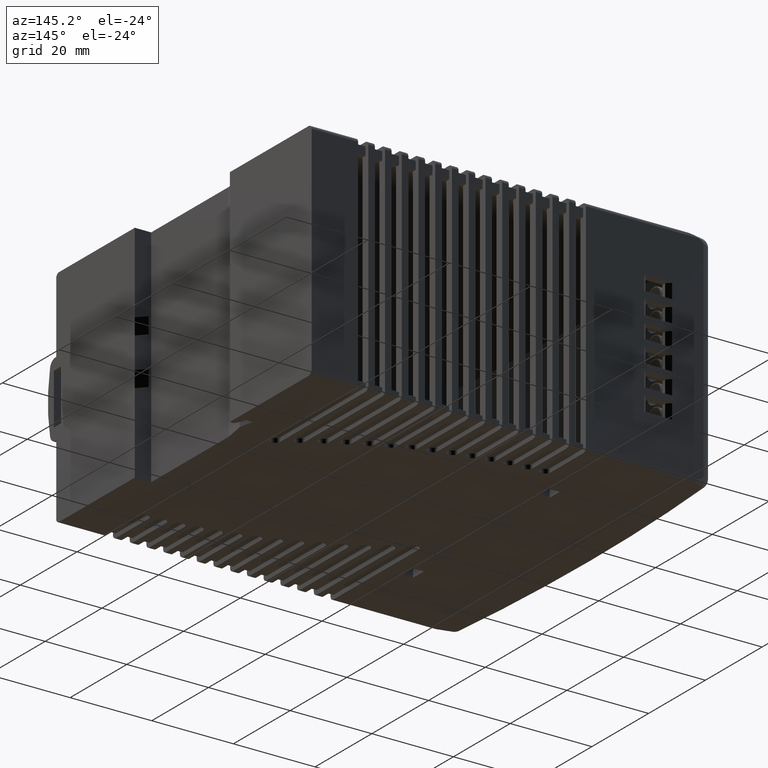
[diagram: clean part render]
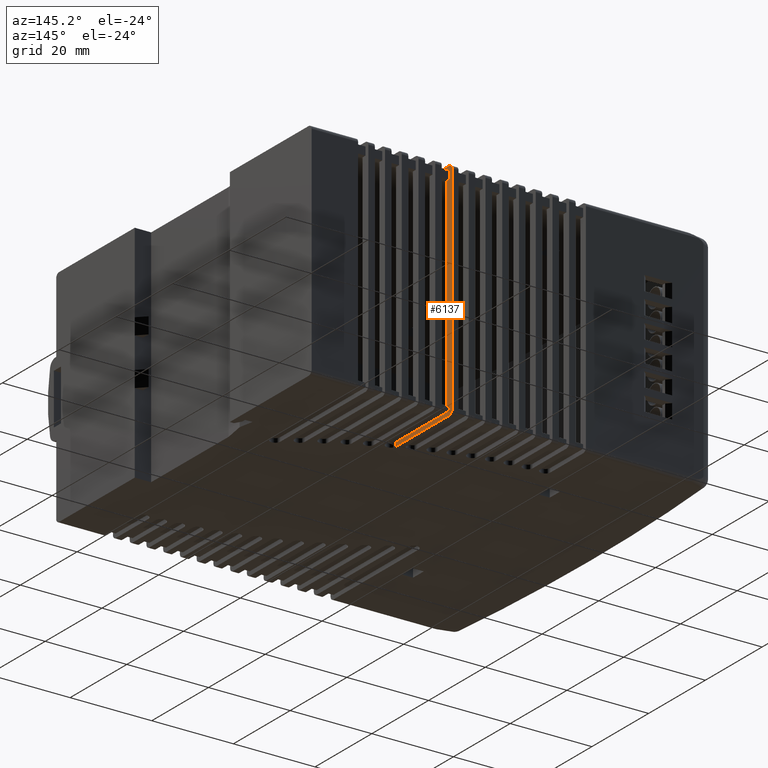
[diagram: same view with one face highlighted and labeled with its STEP entity id]
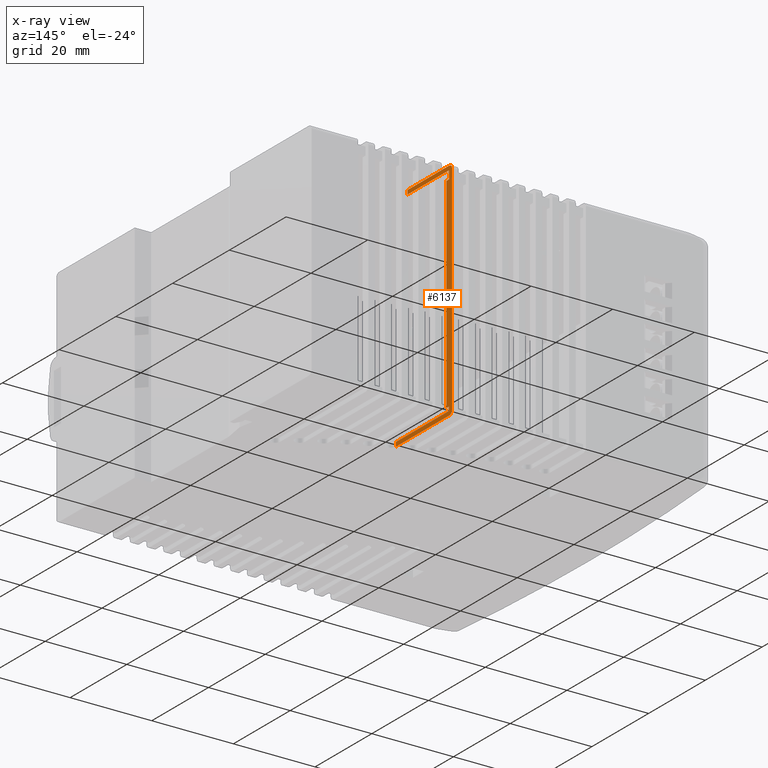
[diagram: x-ray of the same camera — body ghosted, the highlighted face saturated]
A machine part, auxiliary view. The second image highlights one B-rep face of the part: STEP entity #6137.
The next image is the same camera in x-ray: the body ghosted, the highlighted face saturated — about 0% of this face is hidden behind the body in this view.
In plain terms, the highlighted planar face has unit normal (-1, 0, 0).
Its self-contained STEP definition (entity closure, byte-faithful):
#1684=CARTESIAN_POINT('',(14.183936774582566,74.020104148547091,0.0));
#1685=VERTEX_POINT('',#1684);
#1692=CARTESIAN_POINT('',(14.183936774582563,55.294316255991617,0.0));
#1693=VERTEX_POINT('',#1692);
#1694=CARTESIAN_POINT('',(14.183936774582566,74.020104148547091,0.0));
#1695=DIRECTION('',(0.0,-1.0,0.0));
#1696=VECTOR('',#1695,18.725787892555473);
#1697=LINE('',#1694,#1696);
#1698=EDGE_CURVE('',#1685,#1693,#1697,.T.);
#2668=CARTESIAN_POINT('',(14.183936774582563,55.294316255991617,1.0));
#2669=VERTEX_POINT('',#2668);
#2684=CARTESIAN_POINT('',(14.183936774582563,55.294316255991617,0.0));
#2685=DIRECTION('',(0.0,0.0,1.0));
#2686=VECTOR('',#2685,1.0);
#2687=LINE('',#2684,#2686);
#2688=EDGE_CURVE('',#1693,#2669,#2687,.T.);
#2707=CARTESIAN_POINT('',(14.183936774582568,74.020104148547105,1.0));
#2708=VERTEX_POINT('',#2707);
#2709=CARTESIAN_POINT('',(14.183936774582563,55.294316255991617,1.0));
#2710=DIRECTION('',(0.0,1.0,0.0));
#2711=VECTOR('',#2710,18.725787892555488);
#2712=LINE('',#2709,#2711);
#2713=EDGE_CURVE('',#2669,#2708,#2712,.T.);
#4541=CARTESIAN_POINT('',(14.183936774582575,59.380196030672572,55.0));
#4542=VERTEX_POINT('',#4541);
#4550=CARTESIAN_POINT('',(14.183936774582575,74.020104148547077,55.0));
#4551=VERTEX_POINT('',#4550);
#4552=CARTESIAN_POINT('',(14.183936774582575,59.380196030672572,55.0));
#4553=DIRECTION('',(0.0,1.0,0.0));
#4554=VECTOR('',#4553,14.639908117874505);
#4555=LINE('',#4552,#4554);
#4556=EDGE_CURVE('',#4542,#4551,#4555,.T.);
#6004=CARTESIAN_POINT('',(14.183936774582566,75.020104148547077,54.0));
#6005=VERTEX_POINT('',#6004);
#6006=CARTESIAN_POINT('',(14.183936774582568,74.020104148547077,54.0));
#6007=DIRECTION('',(-1.0,0.0,0.0));
#6008=DIRECTION('',(0.0,0.707106781186541,0.707106781186554));
#6009=AXIS2_PLACEMENT_3D('',#6006,#6007,#6008);
#6010=CIRCLE('',#6009,1.0);
#6011=EDGE_CURVE('',#4551,#6005,#6010,.T.);
#6038=CARTESIAN_POINT('',(14.183936774582566,75.020104148547077,1.0));
#6039=VERTEX_POINT('',#6038);
#6040=CARTESIAN_POINT('',(14.183936774582566,75.020104148547077,54.0));
#6041=DIRECTION('',(0.0,0.0,-1.0));
#6042=VECTOR('',#6041,53.0);
#6043=LINE('',#6040,#6042);
#6044=EDGE_CURVE('',#6005,#6039,#6043,.T.);
#6063=CARTESIAN_POINT('',(14.183936774582566,75.020104148547077,2.0));
#6064=DIRECTION('',(-1.0,0.0,0.0));
#6065=DIRECTION('',(0.0,0.0,1.0));
#6066=AXIS2_PLACEMENT_3D('',#6063,#6064,#6065);
#6067=PLANE('',#6066);
#6068=ORIENTED_EDGE('',*,*,#6011,.F.);
#6069=ORIENTED_EDGE('',*,*,#4556,.F.);
#6070=CARTESIAN_POINT('',(14.183936774582575,59.380196030672572,54.0));
#6071=VERTEX_POINT('',#6070);
#6072=CARTESIAN_POINT('',(14.183936774582575,59.380196030672572,55.0));
#6073=DIRECTION('',(0.0,0.0,-1.0));
#6074=VECTOR('',#6073,1.0);
#6075=LINE('',#6072,#6074);
#6076=EDGE_CURVE('',#4542,#6071,#6075,.T.);
#6077=ORIENTED_EDGE('',*,*,#6076,.T.);
#6078=CARTESIAN_POINT('',(14.183936774582575,74.020104148547091,54.0));
#6079=VERTEX_POINT('',#6078);
#6080=CARTESIAN_POINT('',(14.183936774582575,74.020104148547091,54.0));
#6081=DIRECTION('',(0.0,-1.0,0.0));
#6082=VECTOR('',#6081,14.639908117874519);
#6083=LINE('',#6080,#6082);
#6084=EDGE_CURVE('',#6079,#6071,#6083,.T.);
#6085=ORIENTED_EDGE('',*,*,#6084,.F.);
#6086=CARTESIAN_POINT('',(14.183936774582575,74.020104148547091,52.0));
#6087=VERTEX_POINT('',#6086);
#6088=CARTESIAN_POINT('',(14.183936774582575,74.020104148547091,52.0));
#6089=DIRECTION('',(0.0,0.0,1.0));
#6090=VECTOR('',#6089,2.0);
#6091=LINE('',#6088,#6090);
#6092=EDGE_CURVE('',#6087,#6079,#6091,.T.);
#6093=ORIENTED_EDGE('',*,*,#6092,.F.);
#6094=CARTESIAN_POINT('',(14.183936774582575,73.020104148547077,52.0));
#6095=VERTEX_POINT('',#6094);
#6096=CARTESIAN_POINT('',(14.183936774582575,74.020104148547091,52.0));
#6097=DIRECTION('',(0.0,-1.0,0.0));
#6098=VECTOR('',#6097,1.000000000000014);
#6099=LINE('',#6096,#6098);
#6100=EDGE_CURVE('',#6087,#6095,#6099,.T.);
#6101=ORIENTED_EDGE('',*,*,#6100,.T.);
#6102=CARTESIAN_POINT('',(14.183936774582566,73.020104148547077,2.0));
#6103=VERTEX_POINT('',#6102);
#6104=CARTESIAN_POINT('',(14.183936774582566,73.020104148547077,2.0));
#6105=DIRECTION('',(0.0,0.0,1.0));
#6106=VECTOR('',#6105,50.0);
#6107=LINE('',#6104,#6106);
#6108=EDGE_CURVE('',#6103,#6095,#6107,.T.);
#6109=ORIENTED_EDGE('',*,*,#6108,.F.);
#6110=CARTESIAN_POINT('',(14.183936774582566,74.020104148547091,2.0));
#6111=VERTEX_POINT('',#6110);
#6112=CARTESIAN_POINT('',(14.183936774582566,74.020104148547091,2.0));
#6113=DIRECTION('',(0.0,-1.0,0.0));
#6114=VECTOR('',#6113,1.000000000000014);
#6115=LINE('',#6112,#6114);
#6116=EDGE_CURVE('',#6111,#6103,#6115,.T.);
#6117=ORIENTED_EDGE('',*,*,#6116,.F.);
#6118=CARTESIAN_POINT('',(14.183936774582568,74.020104148547105,1.0));
#6119=DIRECTION('',(0.0,0.0,1.0));
#6120=VECTOR('',#6119,1.0);
#6121=LINE('',#6118,#6120);
#6122=EDGE_CURVE('',#2708,#6111,#6121,.T.);
#6123=ORIENTED_EDGE('',*,*,#6122,.F.);
#6124=ORIENTED_EDGE('',*,*,#2713,.F.);
#6125=ORIENTED_EDGE('',*,*,#2688,.F.);
#6126=ORIENTED_EDGE('',*,*,#1698,.F.);
#6127=CARTESIAN_POINT('',(14.183936774582566,74.020104148547077,1.0));
#6128=DIRECTION('',(-1.000000000000000,0.0,0.0));
#6129=DIRECTION('',(0.0,0.707106781186540,-0.707106781186555));
#6130=AXIS2_PLACEMENT_3D('',#6127,#6128,#6129);
#6131=CIRCLE('',#6130,1.000000000000000);
#6132=EDGE_CURVE('',#6039,#1685,#6131,.T.);
#6133=ORIENTED_EDGE('',*,*,#6132,.F.);
#6134=ORIENTED_EDGE('',*,*,#6044,.F.);
#6135=EDGE_LOOP('',(#6068,#6069,#6077,#6085,#6093,#6101,#6109,#6117,#6123,#6124,#6125,#6126,#6133,#6134));
#6136=FACE_OUTER_BOUND('',#6135,.T.);
#6137=ADVANCED_FACE('',(#6136),#6067,.F.);